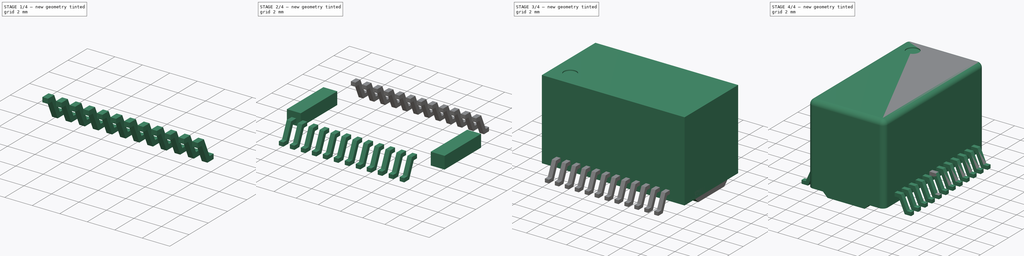
[diagram: build sequence overview — one tinted view per stage of 4, left to right]
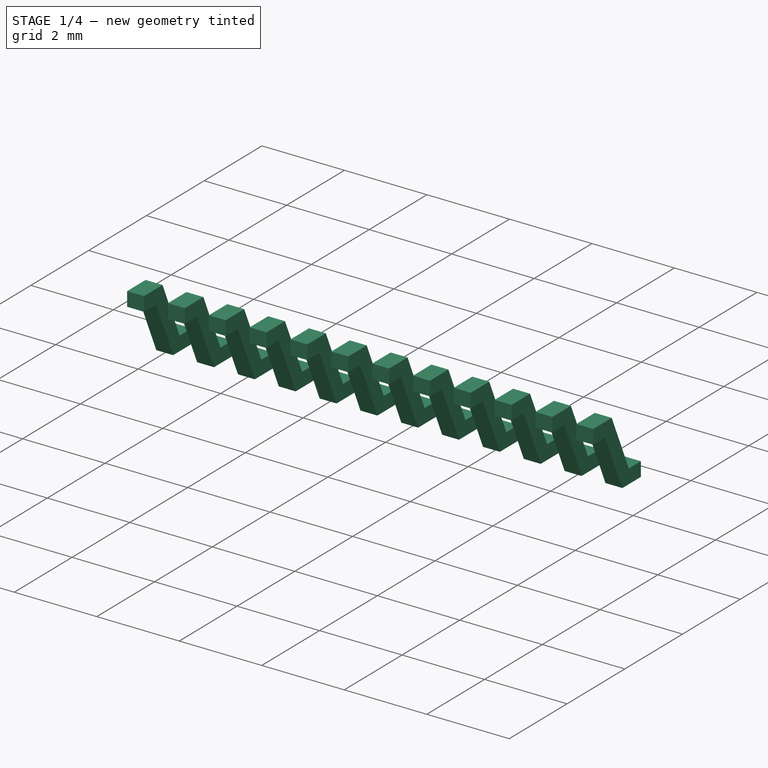
[diagram: stage 1 of 4 — iso view after this stage's code; geometry added in this stage tinted green]
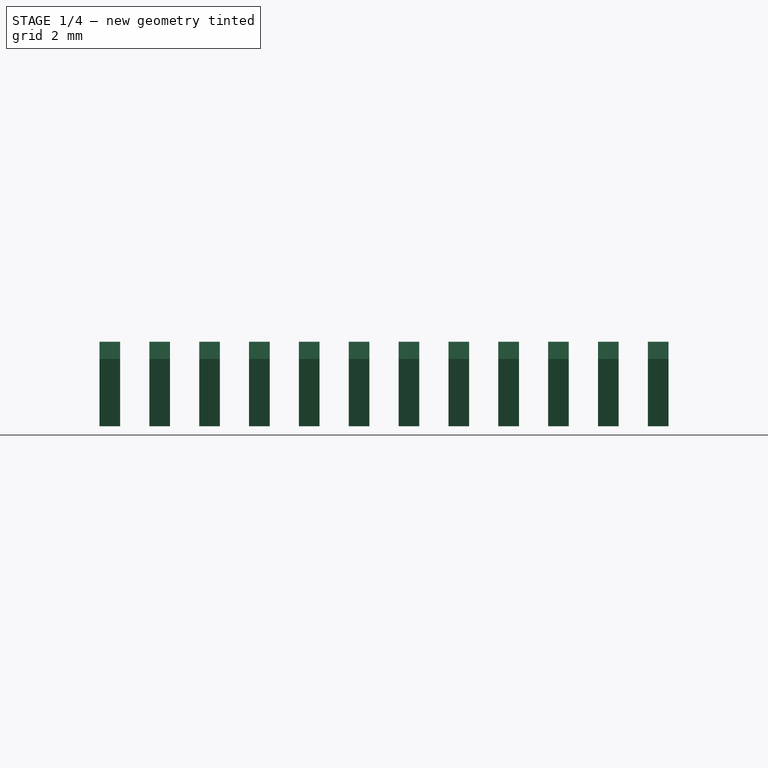
[diagram: stage 1 of 4 — front view after this stage's code; geometry added in this stage tinted green]
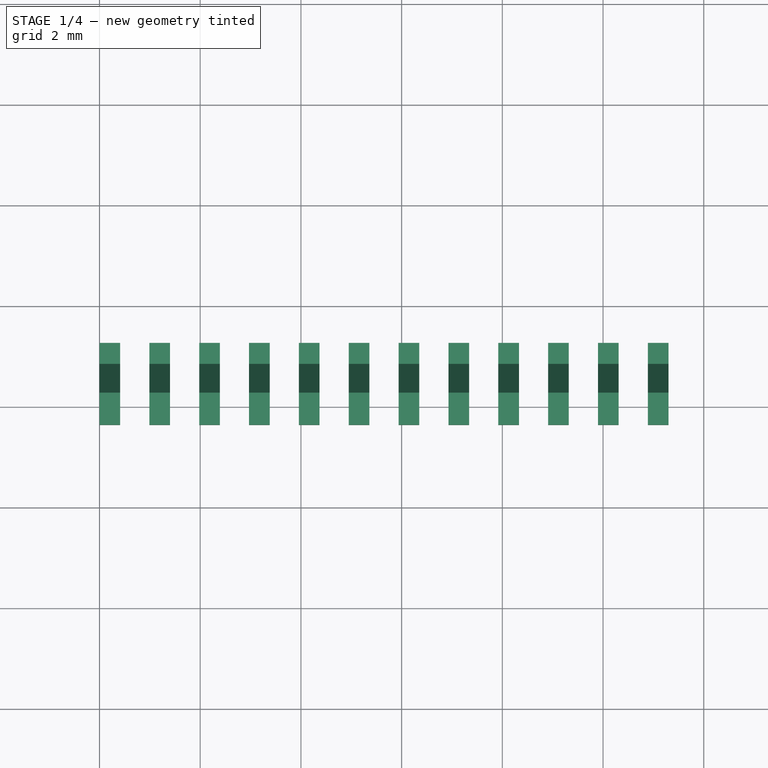
[diagram: stage 1 of 4 — top view after this stage's code; geometry added in this stage tinted green]
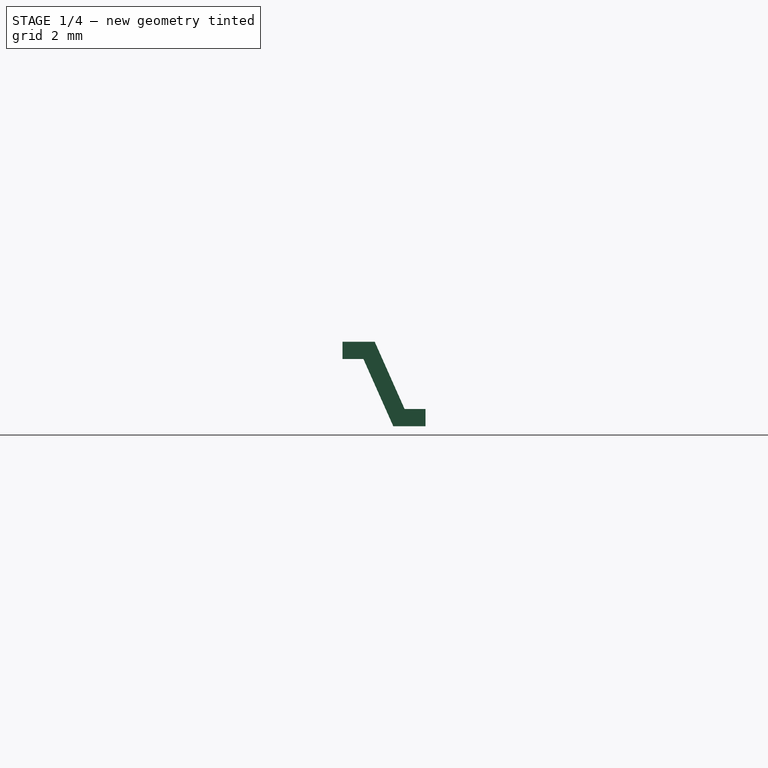
[diagram: stage 1 of 4 — right view after this stage's code; geometry added in this stage tinted green]
FCSTD DOCUMENT  (FreeCAD 0.15R4671 (Git))
Label: Transformer_Ethernet_HALO_TG111-MSC13
License: All rights reserved
LicenseURL: http://en.wikipedia.org/wiki/All_rights_reserved
objects: Sketcher::SketchObject×4, PartDesign::Pad×3, Part::FeaturePython×2, Part::MultiFuse×2, Part::Mirroring×1, PartDesign::Pocket×1, Part::Fillet×1, Part::Chamfer×1, Part::Fuse×1
note: 20 computed .brp shape members not serialized (recipe doc carries the construction recipe); baked Part::Feature solids carry a one-line shape summary decoded from their .brp

FEATURE [Sketcher::SketchObject] Sketch
  Placement = pos=(0,0,0) rot=(0.57735,0.57735,0.57735;2.0944rad)
  sketch-geometry (9):
    g0: LineSegment StartX=-1.65 StartY=0 StartZ=0 EndX=-1.65 EndY=0.343718 EndZ=0
    g1: LineSegment StartX=-1.65 StartY=0.343718 StartZ=0 EndX=-1.2334 EndY=0.343718 EndZ=0
    g2: LineSegment StartX=-1.2334 StartY=0.343718 StartZ=0 EndX=-0.64 EndY=1.67921 EndZ=0
    g3: LineSegment StartX=-0.64 StartY=1.67921 StartZ=0 EndX=0 EndY=1.67921 EndZ=0
    g4: LineSegment StartX=0 StartY=1.67921 StartZ=0 EndX=0 EndY=1.33549 EndZ=0
    g5: LineSegment StartX=0 StartY=1.33549 StartZ=0 EndX=-0.416603 EndY=1.33549 EndZ=0
    g6: LineSegment StartX=-0.416603 StartY=1.33549 StartZ=0 EndX=-1.01 EndY=0 EndZ=0
    g7: LineSegment StartX=-1.01 StartY=0 StartZ=0 EndX=-1.65 EndY=0 EndZ=0
    g8: LineSegment StartX=-0.416603 StartY=1.33549 StartZ=0 EndX=-0.73071 EndY=1.47506 EndZ=0
  constraints (25):
    c: PointOnObject(g0,g-1)
    c: Vertical(g0)
    c: Coincident(g0,g1)
    c: Horizontal(g1)
    c: Coincident(g1,g2)
    c: Coincident(g2,g3)
    c: Horizontal(g3)
    c: Coincident(g3,g4)
    c: Vertical(g4)
    c: Coincident(g4,g5)
    c: Horizontal(g5)
    c: Coincident(g5,g6)
    c: Coincident(g6,g7)
    c: Coincident(g7,g0)
    c: Horizontal(g7)
    c: PointOnObject(g4,g-2)
    c: Coincident(g8,g5)
    c: PointOnObject(g8,g2)
    c: Perpendicular(g2,g8)
    c: Parallel(g2,g6)
    c: Equal(g0,g8)
    c: Equal(g8,g4)
    c: Distance(g7) = 0.64
    c: Distance(g-1,g0) = 1.65
    c: Equal(g3,g7)
FEATURE [PartDesign::Pad] Pad
  Length = 0.41
  Length2 = 100
  Placement = pos=(0,0,0) rot=(0.57735,0.57735,0.57735;2.0944rad)
  Sketch = -> Sketch
  Type = 0
FEATURE [Part::FeaturePython] Array  label="PadLine"  # Draft array (typed FeaturePython)
  Angle = 360
  ArrayType = 0
  Axis = (0,0,1)
  Base = -> Pad
  Center = (0,0,0)
  Fuse = false
  IntervalAxis = (0,0,0)
  IntervalX = (0.99,0,0)
  IntervalY = (0,1,0)
  IntervalZ = (0,0,0)
  NumberPolar = 1
  NumberX = 12
  NumberY = 1
  NumberZ = 1
FEATURE [Part::Mirroring] Part__Mirroring  label="PadLines"
  Base = (5.65,5.9605e-08,0.839606)
  Normal = (0,1,-1.19209e-07)
  Placement = pos=(0,7.62,0) rot=(0,0,1;0rad)
  Source = -> Array
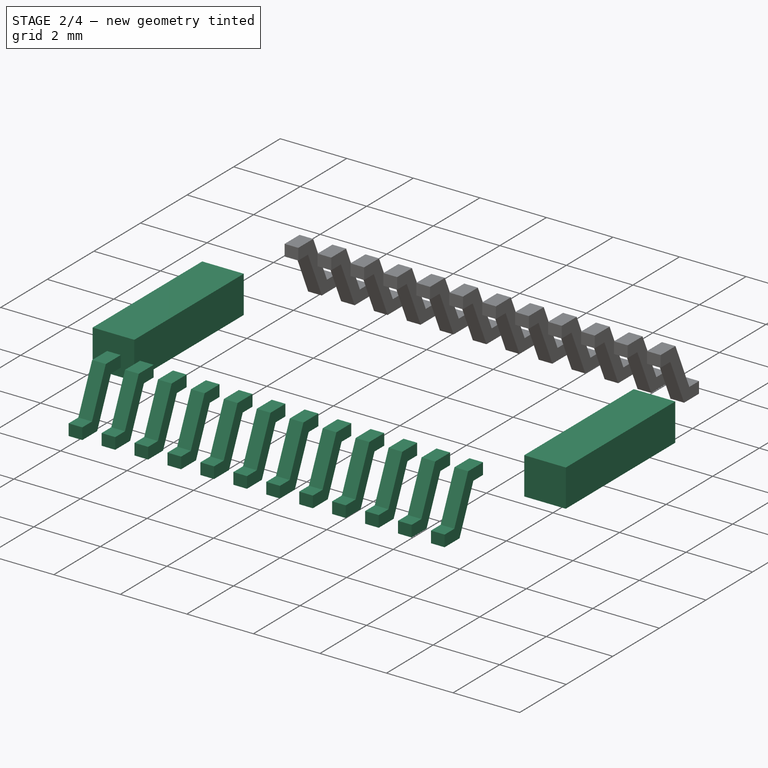
[diagram: stage 2 of 4 — iso view after this stage's code; geometry added in this stage tinted green]
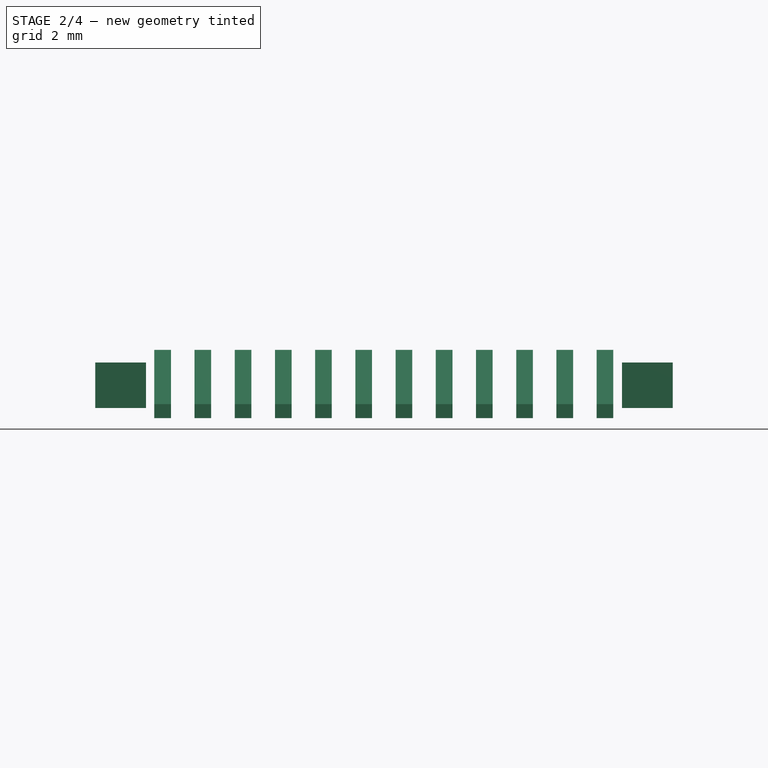
[diagram: stage 2 of 4 — front view after this stage's code; geometry added in this stage tinted green]
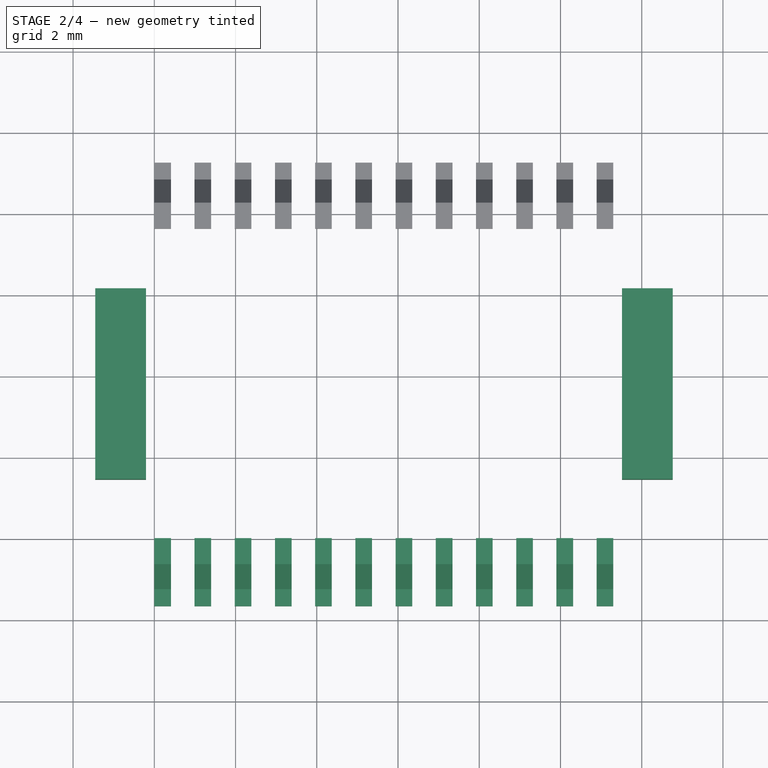
[diagram: stage 2 of 4 — top view after this stage's code; geometry added in this stage tinted green]
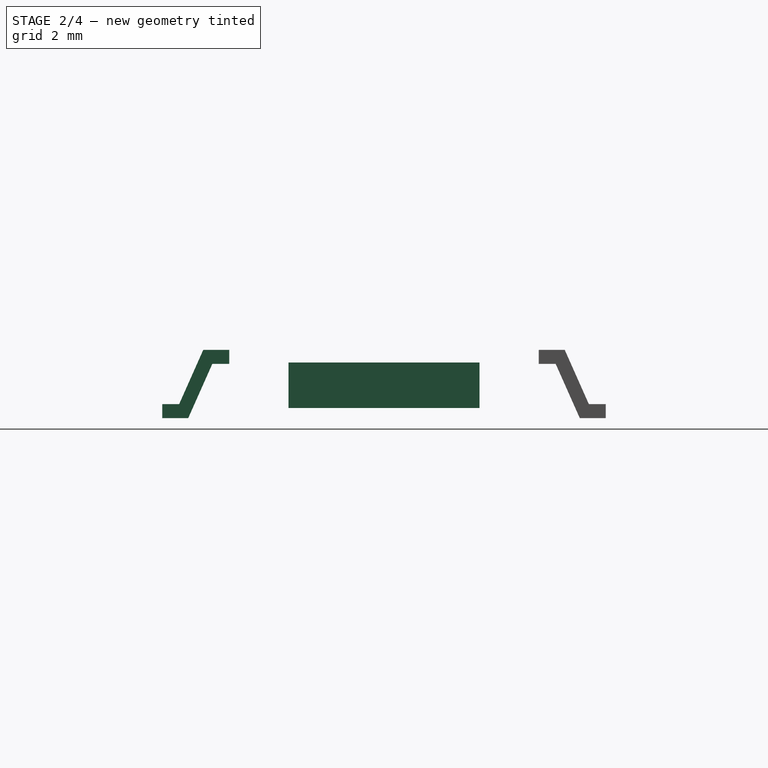
[diagram: stage 2 of 4 — right view after this stage's code; geometry added in this stage tinted green]
FEATURE [Sketcher::SketchObject] Sketch002
  Placement = pos=(-1.455,0,0) rot=(0.57735,0.57735,0.57735;2.0944rad)
  sketch-geometry (5):
    g0: LineSegment StartX=1.46 StartY=0.25 StartZ=0 EndX=6.16 EndY=0.25 EndZ=0
    g1: LineSegment StartX=6.16 StartY=0.25 StartZ=0 EndX=6.16 EndY=1.37 EndZ=0
    g2: LineSegment StartX=6.16 StartY=1.37 StartZ=0 EndX=1.46 EndY=1.37 EndZ=0
    g3: LineSegment StartX=1.46 StartY=1.37 StartZ=0 EndX=1.46 EndY=0.25 EndZ=0
    g4: GeomPoint [constr] X=0 Y=0.25 Z=0
  constraints (14):
    c: Coincident(g0,g1)
    c: Coincident(g1,g2)
    c: Coincident(g2,g3)
    c: Coincident(g3,g0)
    c: Horizontal(g0)
    c: Horizontal(g2)
    c: Vertical(g1)
    c: Vertical(g3)
    c: Distance(g3) = 1.12
    c: Distance(g0) = 4.7
    c: DistanceY(g-1,g0) = 0.25
    c: PointOnObject(g4,g-2)
    c: Distance(g-1,g4) = 0.25
    c: Distance(g4,g0) = 1.46
FEATURE [PartDesign::Pad] Pad002
  Length = 1.25
  Length2 = 100
  Placement = pos=(-1.455,0,0) rot=(0.57735,0.57735,0.57735;2.0944rad)
  Sketch = -> Sketch002
  Type = 0
FEATURE [Part::FeaturePython] Array001  label="Additions"  # Draft array (typed FeaturePython)
  Angle = 360
  ArrayType = 0
  Axis = (0,0,1)
  Base = -> Pad002
  Center = (0,0,0)
  Fuse = false
  IntervalAxis = (0,0,0)
  IntervalX = (12.97,0,0)
  IntervalY = (0,1,0)
  IntervalZ = (0,0,0)
  NumberPolar = 1
  NumberX = 2
  NumberY = 1
  NumberZ = 1
FEATURE [Part::MultiFuse] Fusion001  label="Pads"
  Shapes = -> [Part__Mirroring,Array]
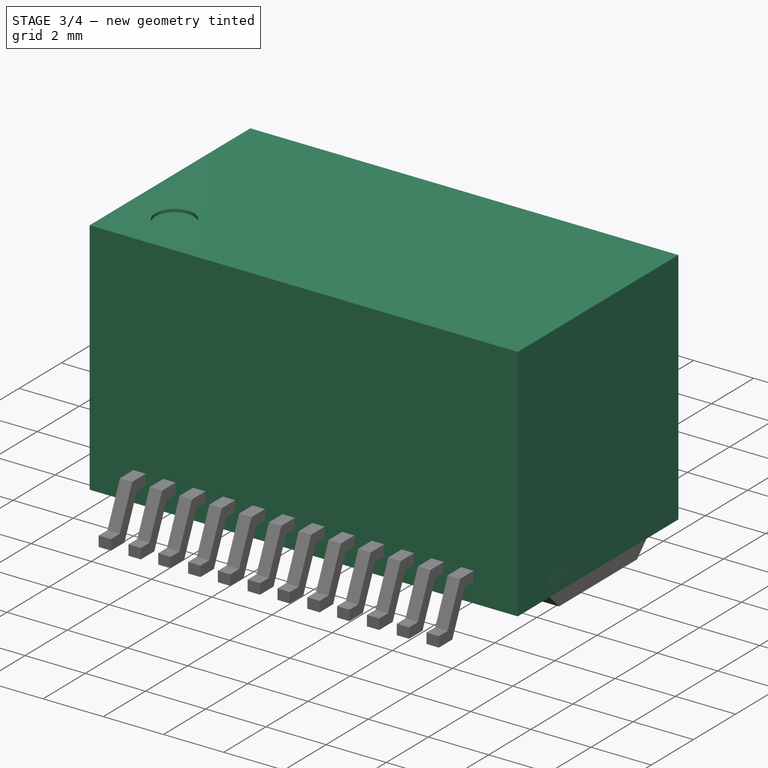
[diagram: stage 3 of 4 — iso view after this stage's code; geometry added in this stage tinted green]
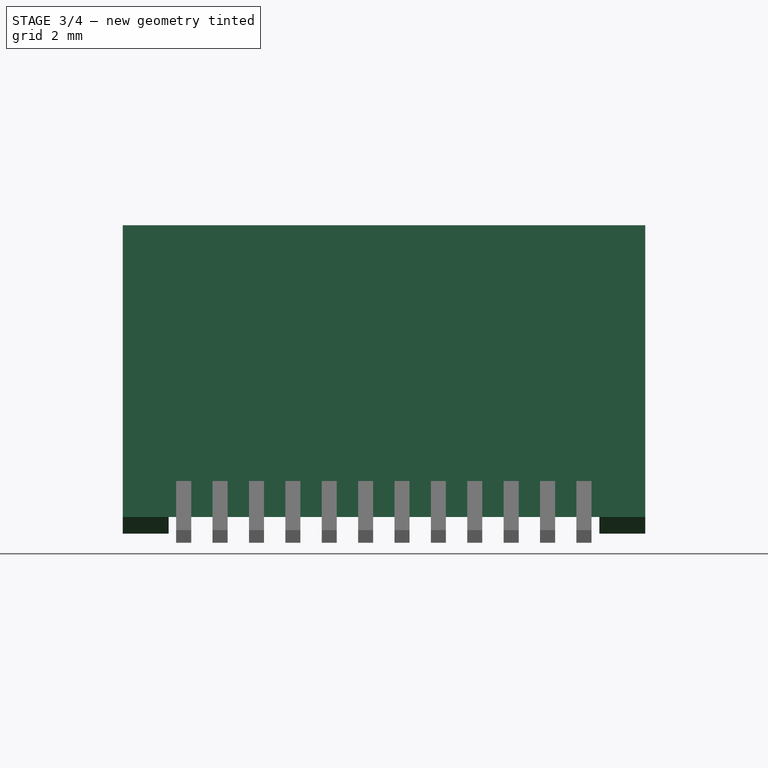
[diagram: stage 3 of 4 — front view after this stage's code; geometry added in this stage tinted green]
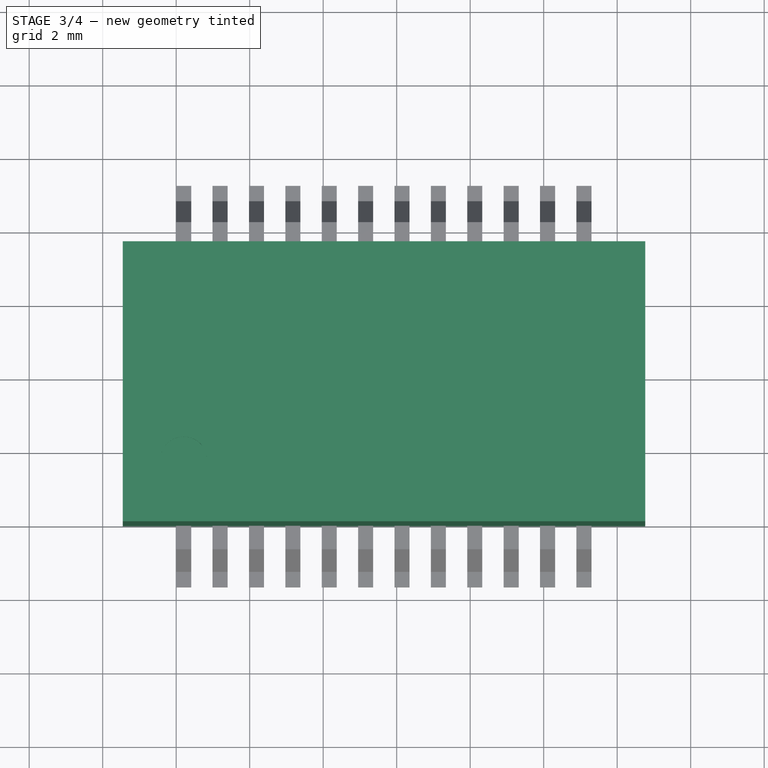
[diagram: stage 3 of 4 — top view after this stage's code; geometry added in this stage tinted green]
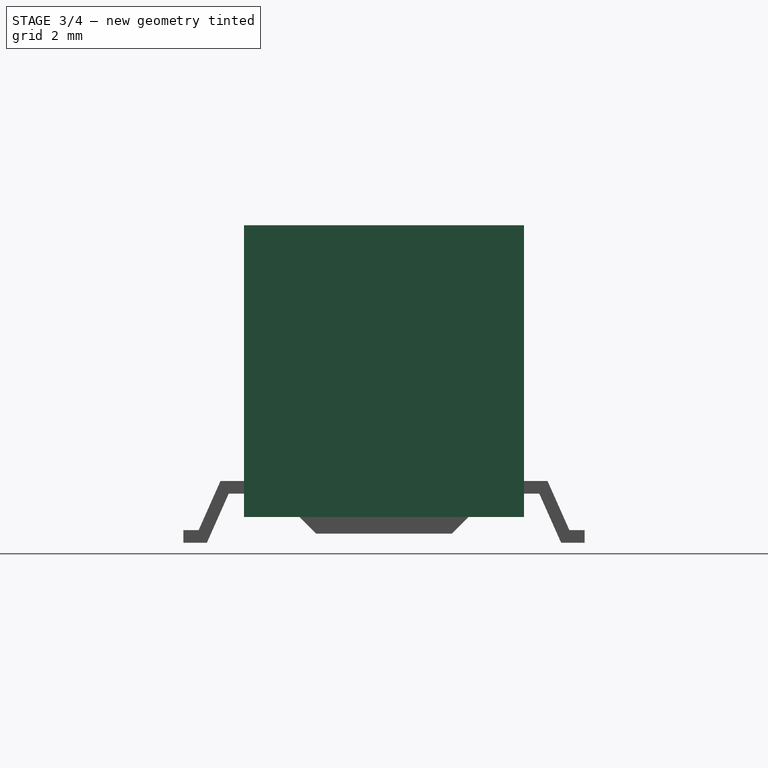
[diagram: stage 3 of 4 — right view after this stage's code; geometry added in this stage tinted green]
FEATURE [Sketcher::SketchObject] Sketch001
  Placement = pos=(0,0,0.7) rot=(0,0,1;0rad)
  sketch-geometry (4):
    g0: LineSegment StartX=-1.455 StartY=0 StartZ=0 EndX=12.765 EndY=0 EndZ=0
    g1: LineSegment StartX=12.765 StartY=0 StartZ=0 EndX=12.765 EndY=7.62 EndZ=0
    g2: LineSegment StartX=12.765 StartY=7.62 StartZ=0 EndX=-1.455 EndY=7.62 EndZ=0
    g3: LineSegment StartX=-1.455 StartY=7.62 StartZ=0 EndX=-1.455 EndY=0 EndZ=0
  constraints (12):
    c: Coincident(g0,g1)
    c: Coincident(g1,g2)
    c: Coincident(g2,g3)
    c: Coincident(g3,g0)
    c: Horizontal(g0)
    c: Horizontal(g2)
    c: Vertical(g1)
    c: Vertical(g3)
    c: PointOnObject(g0,g-1)
    c: Distance(g2) = 14.22
    c: Distance(g1) = 7.62
    c: Distance(g-1,g0) = 1.455
FEATURE [PartDesign::Pad] Pad001  label="Box"
  Length = 7.94
  Length2 = 1
  Placement = pos=(0,0,0.7) rot=(0,0,1;0rad)
  Sketch = -> Sketch001
  Type = 0
FEATURE [Sketcher::SketchObject] Sketch003
  Placement = pos=(0,0,8.64) rot=(0,0,1;0rad)
  Support = -> Pad001 [Face6]
  sketch-geometry (2):
    g0: Circle CenterX=0.205 CenterY=1.66 CenterZ=0 NormalX=0 NormalY=0 NormalZ=1 Radius=0.641249
    g1: LineSegment [constr] StartX=0.205 StartY=0 StartZ=0 EndX=0.205 EndY=2.22381 EndZ=0
  constraints (5):
    c: Vertical(g1)
    c: PointOnObject(g1,g-1)
    c: Distance(g-1,g1) = 0.205
    c: PointOnObject(g0,g1)
    c: Distance(g0,g1) = 1.66
FEATURE [PartDesign::Pocket] Pocket
  Length = 0.1
  Placement = pos=(0,0,0.7) rot=(0,0,1;0rad)
  Sketch = -> Sketch003
  Type = 0
FEATURE [Part::Chamfer] Chamfer
  Base = -> Array001
  Edges = 4 edges r=0.5: [Edge1,Edge2,Edge13,Edge14]
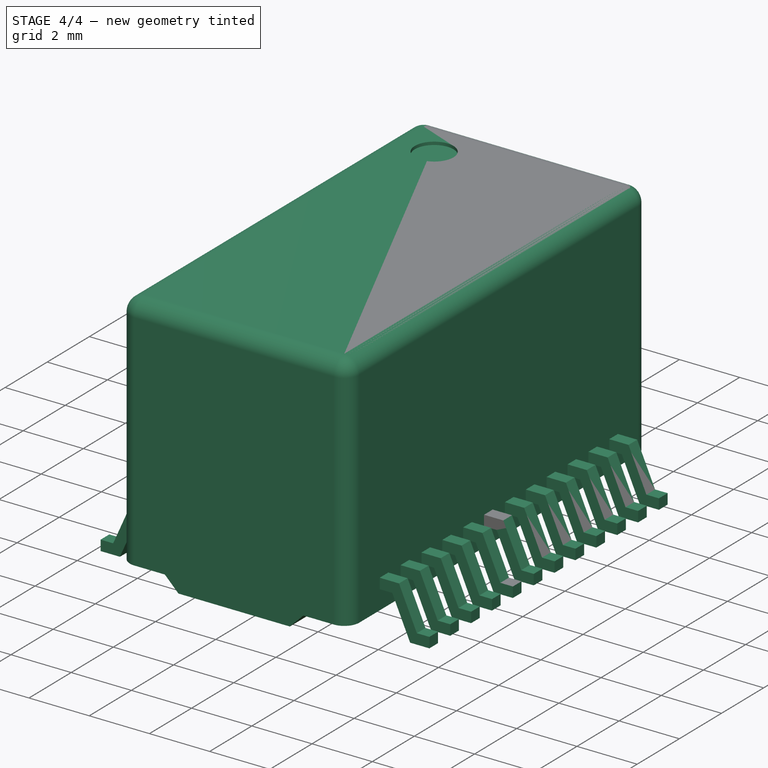
[diagram: stage 4 of 4 — iso view after this stage's code; geometry added in this stage tinted green]
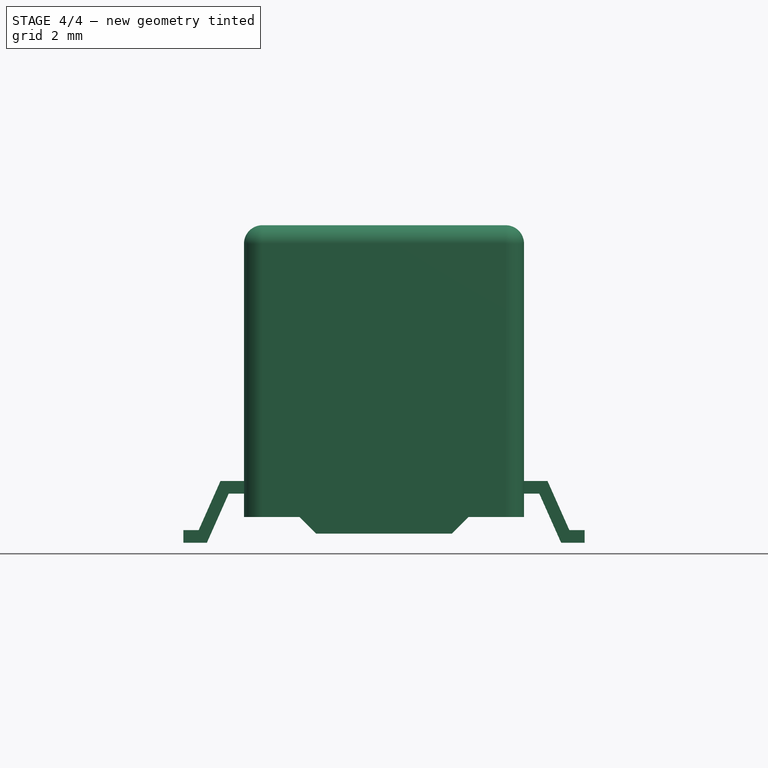
[diagram: stage 4 of 4 — front view after this stage's code; geometry added in this stage tinted green]
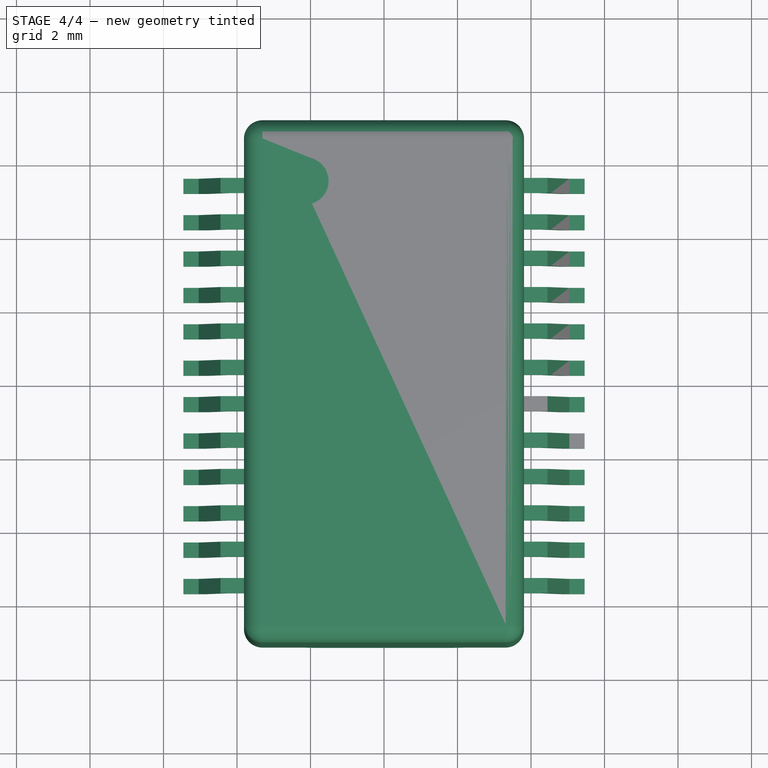
[diagram: stage 4 of 4 — top view after this stage's code; geometry added in this stage tinted green]
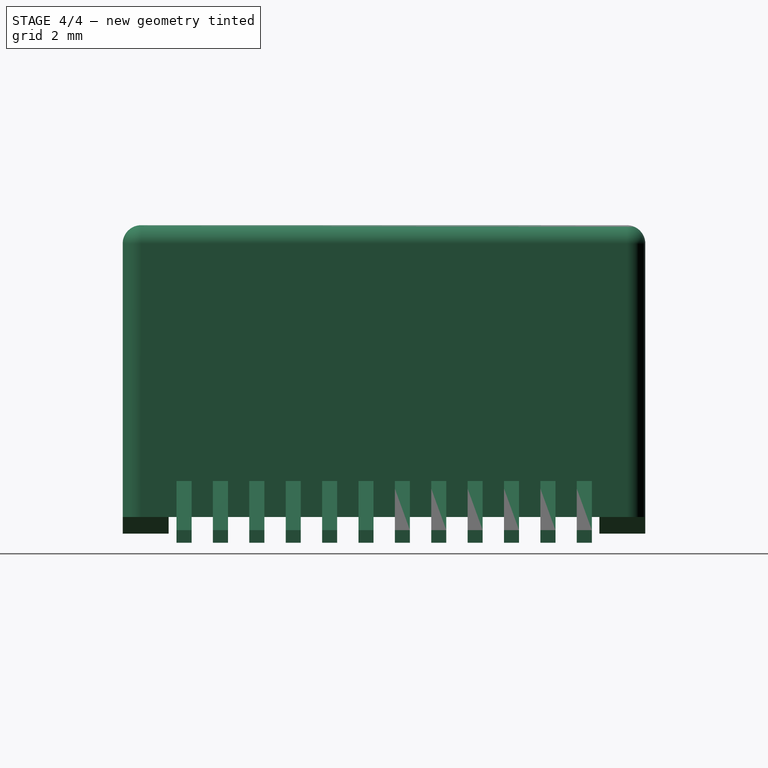
[diagram: stage 4 of 4 — right view after this stage's code; geometry added in this stage tinted green]
FEATURE [Part::Fillet] Fillet
  Base = -> Pocket
  Edges = 8 edges r=0.5: [Edge1,Edge2,Edge4,Edge5,Edge7,Edge8,Edge10,Edge12]
FEATURE [Part::Fuse] Fusion  label="Body"
  Base = -> Fillet
  Tool = -> Chamfer
FEATURE [Part::MultiFuse] Fusion002  label="Transformer_Ethernet_HALO_TG111-MSC13"
  Placement = pos=(-3.81,5.64,0) rot=(0,0,-1;1.5708rad)
  Shapes = -> [Fusion,Fusion001]
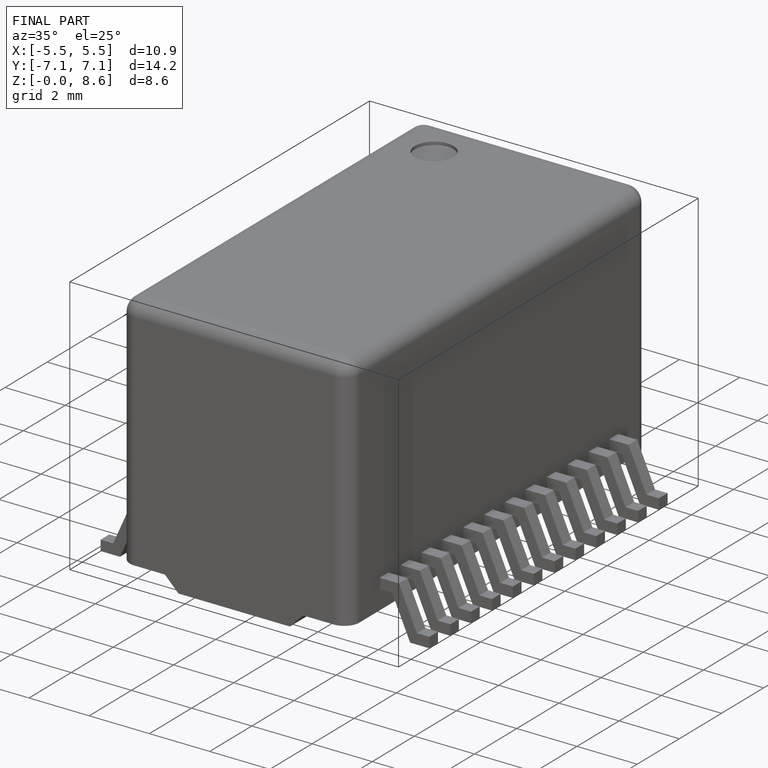
[diagram: finished part — iso view with bounding-box wireframe]
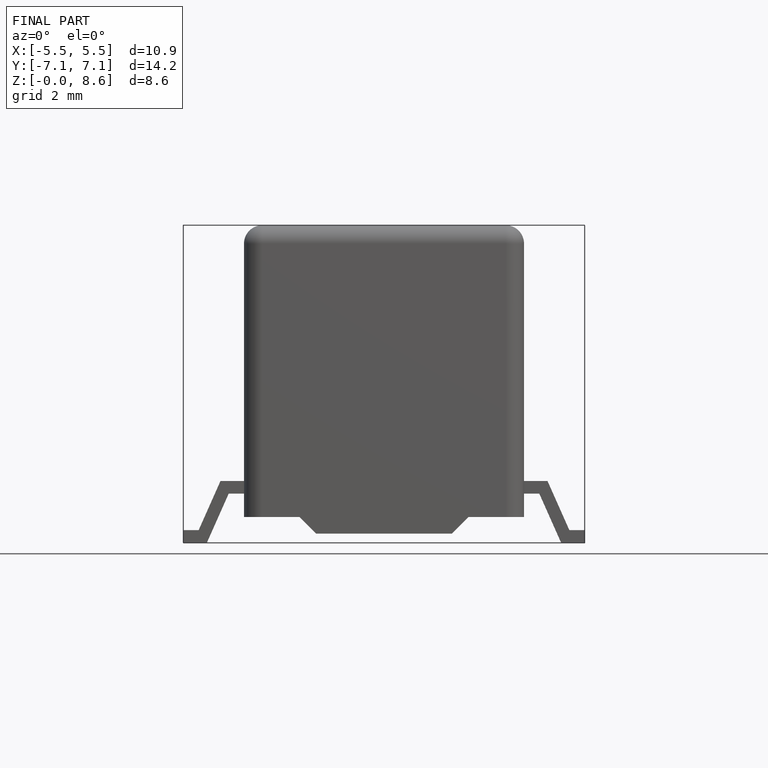
[diagram: finished part — front view with bounding-box wireframe]
